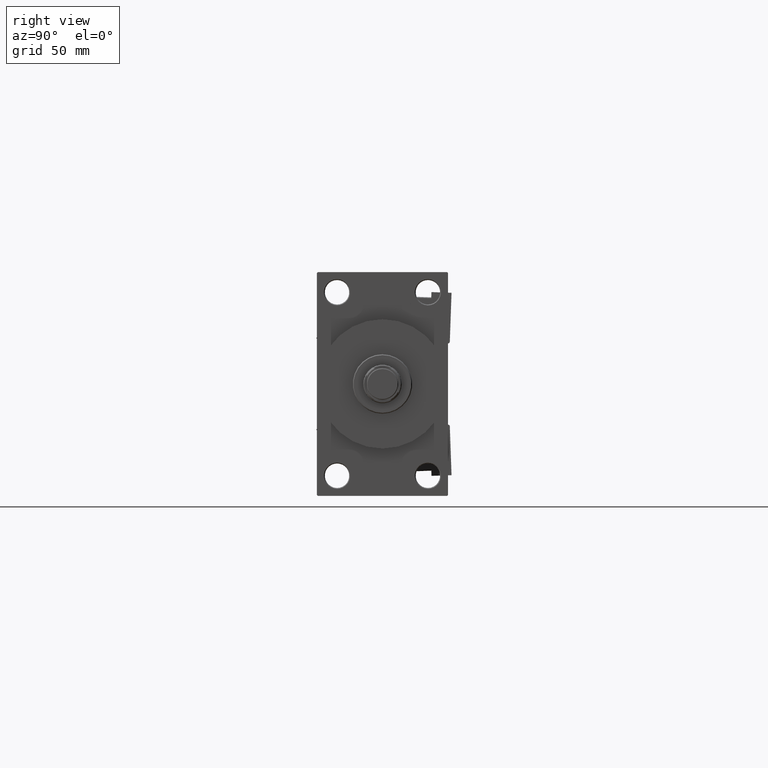
[diagram: clean part render]
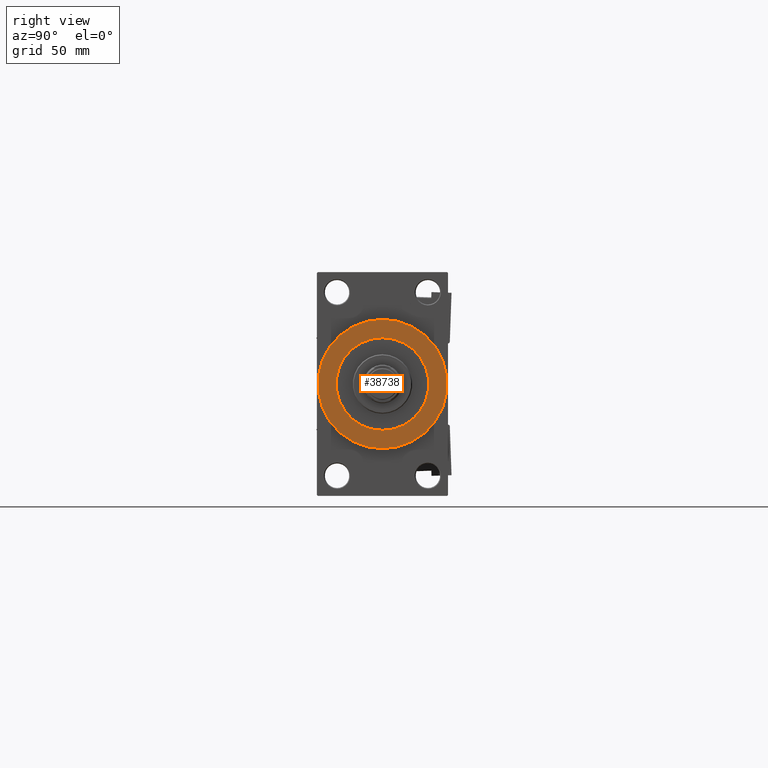
[diagram: same view with one face highlighted and labeled with its STEP entity id]
A machine part, right view. The second image highlights one B-rep face of the part: STEP entity #38738.
In plain terms, the highlighted planar face has unit normal (1, 0, 0).
Its self-contained STEP definition (entity closure, byte-faithful):
#1253 = CIRCLE ( 'NONE', #36770, 37.00000000000000000 ) ;
#4776 = VERTEX_POINT ( 'NONE', #33547 ) ;
#6607 = AXIS2_PLACEMENT_3D ( 'NONE', #28416, #31713, #9238 ) ;
#7961 = EDGE_CURVE ( 'NONE', #20839, #4776, #36662, .T. ) ;
#9238 = DIRECTION ( 'NONE',  ( 0.000000000000000000, 0.000000000000000000, -1.000000000000000000 ) ) ;
#11047 = DIRECTION ( 'NONE',  ( 0.000000000000000000, 0.000000000000000000, -1.000000000000000000 ) ) ;
#13721 = EDGE_CURVE ( 'NONE', #28210, #15090, #1253, .T. ) ;
#15090 = VERTEX_POINT ( 'NONE', #22795 ) ;
#15449 = CIRCLE ( 'NONE', #6607, 37.00000000000000000 ) ;
#16195 = FACE_BOUND ( 'NONE', #32416, .T. ) ;
#17451 = EDGE_CURVE ( 'NONE', #15090, #28210, #15449, .T. ) ;
#18417 = CARTESIAN_POINT ( 'NONE',  ( 333.9999999999999432, 4.531193156845206793E-15, -37.00000000000000000 ) ) ;
#20223 = CARTESIAN_POINT ( 'NONE',  ( 333.9999999999999432, 0.000000000000000000, 0.000000000000000000 ) ) ;
#20484 = DIRECTION ( 'NONE',  ( 1.000000000000000000, 0.000000000000000000, 0.000000000000000000 ) ) ;
#20839 = VERTEX_POINT ( 'NONE', #46080 ) ;
#21259 = ORIENTED_EDGE ( 'NONE', *, *, #17451, .T. ) ;
#22795 = CARTESIAN_POINT ( 'NONE',  ( 333.9999999999999432, 0.000000000000000000, 37.00000000000000000 ) ) ;
#23702 = ORIENTED_EDGE ( 'NONE', *, *, #49757, .F. ) ;
#25242 = DIRECTION ( 'NONE',  ( 0.000000000000000000, 0.000000000000000000, -1.000000000000000000 ) ) ;
#26150 = CIRCLE ( 'NONE', #42270, 26.50000000000000355 ) ;
#26867 = FACE_OUTER_BOUND ( 'NONE', #26882, .T. ) ;
#26882 = EDGE_LOOP ( 'NONE', ( #21259, #42212 ) ) ;
#28210 = VERTEX_POINT ( 'NONE', #18417 ) ;
#28416 = CARTESIAN_POINT ( 'NONE',  ( 333.9999999999999432, 0.000000000000000000, 0.000000000000000000 ) ) ;
#28798 = CARTESIAN_POINT ( 'NONE',  ( 333.9999999999999432, 0.000000000000000000, 0.000000000000000000 ) ) ;
#31601 = PLANE ( 'NONE',  #44991 ) ;
#31713 = DIRECTION ( 'NONE',  ( 1.000000000000000000, 0.000000000000000000, 0.000000000000000000 ) ) ;
#32416 = EDGE_LOOP ( 'NONE', ( #41443, #23702 ) ) ;
#33547 = CARTESIAN_POINT ( 'NONE',  ( 333.9999999999999432, 3.245314017740486554E-15, 26.50000000000000355 ) ) ;
#34006 = CARTESIAN_POINT ( 'NONE',  ( 333.9999999999999432, 0.000000000000000000, 0.000000000000000000 ) ) ;
#36662 = CIRCLE ( 'NONE', #48704, 26.50000000000000355 ) ;
#36770 = AXIS2_PLACEMENT_3D ( 'NONE', #20223, #20484, #47950 ) ;
#38738 = ADVANCED_FACE ( 'NONE', ( #16195, #26867 ), #31601, .T. ) ;
#39415 = DIRECTION ( 'NONE',  ( 1.000000000000000000, 0.000000000000000000, 0.000000000000000000 ) ) ;
#41443 = ORIENTED_EDGE ( 'NONE', *, *, #7961, .F. ) ;
#42212 = ORIENTED_EDGE ( 'NONE', *, *, #13721, .T. ) ;
#42270 = AXIS2_PLACEMENT_3D ( 'NONE', #28798, #47690, #25242 ) ;
#43450 = CARTESIAN_POINT ( 'NONE',  ( 333.9999999999999432, 0.000000000000000000, 0.000000000000000000 ) ) ;
#44991 = AXIS2_PLACEMENT_3D ( 'NONE', #43450, #39415, #46962 ) ;
#45842 = DIRECTION ( 'NONE',  ( 1.000000000000000000, 0.000000000000000000, 0.000000000000000000 ) ) ;
#46080 = CARTESIAN_POINT ( 'NONE',  ( 333.9999999999999432, 0.000000000000000000, -26.50000000000000355 ) ) ;
#46962 = DIRECTION ( 'NONE',  ( 0.000000000000000000, 0.000000000000000000, -1.000000000000000000 ) ) ;
#47690 = DIRECTION ( 'NONE',  ( 1.000000000000000000, 0.000000000000000000, 0.000000000000000000 ) ) ;
#47950 = DIRECTION ( 'NONE',  ( 0.000000000000000000, 0.000000000000000000, -1.000000000000000000 ) ) ;
#48704 = AXIS2_PLACEMENT_3D ( 'NONE', #34006, #45842, #11047 ) ;
#49757 = EDGE_CURVE ( 'NONE', #4776, #20839, #26150, .T. ) ;